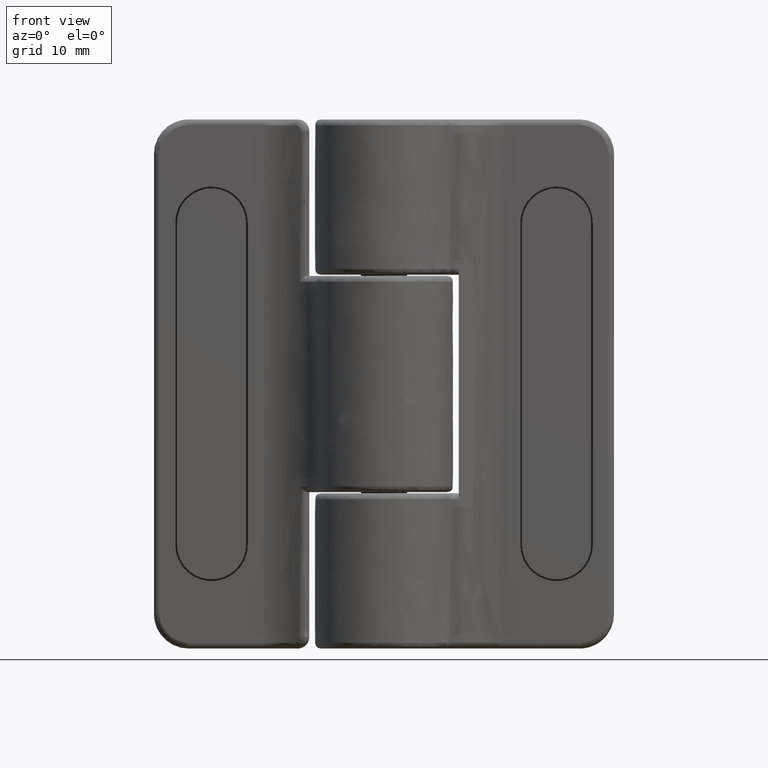
[diagram: clean part render]
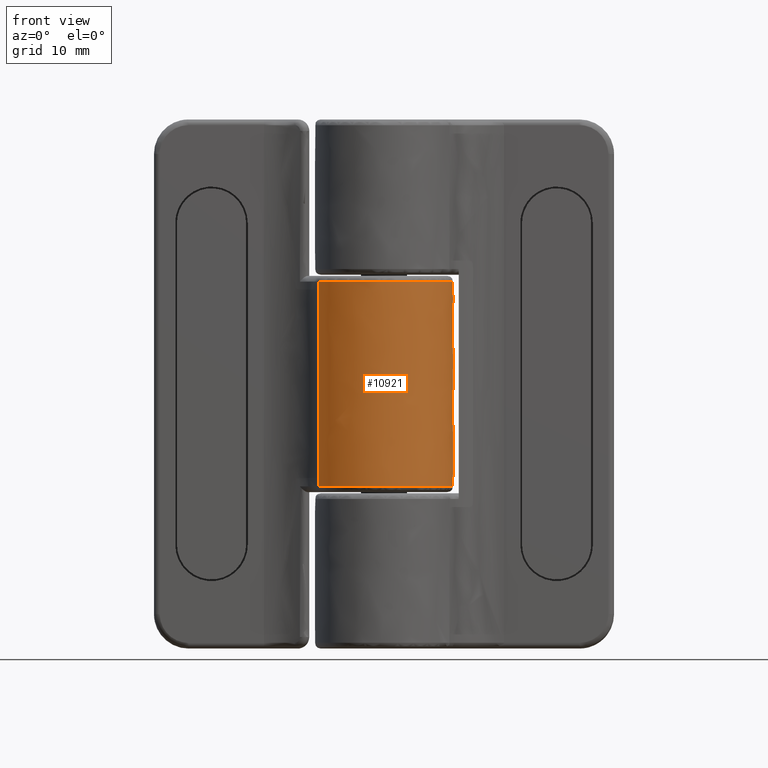
[diagram: same view with one face highlighted and labeled with its STEP entity id]
A machine part, front view. The second image highlights one B-rep face of the part: STEP entity #10921.
In plain terms, the highlighted face is a freeform B-spline surface patch.
Its self-contained STEP definition (entity closure, byte-faithful):
#9218=CARTESIAN_POINT('',(5.656854249543970,2.000000000015120,8.899999999998132));
#9219=VERTEX_POINT('',#9218);
#9245=CARTESIAN_POINT('',(5.656854249543970,2.000000000015120,5.899999999998240));
#9246=VERTEX_POINT('',#9245);
#9247=CARTESIAN_POINT('',(5.656854249543970,2.000000000015120,5.899999999998240));
#9248=CARTESIAN_POINT('',(5.656854249543970,2.000000000015120,8.899999999998132));
#9249=QUASI_UNIFORM_CURVE('',1,(#9247,#9248),.UNSPECIFIED.,.F.,.U.);
#9250=EDGE_CURVE('',#9246,#9219,#9249,.T.);
#9344=CARTESIAN_POINT('',(3.625989277842790,4.780397656825429,5.899999999998240));
#9345=VERTEX_POINT('',#9344);
#9346=CARTESIAN_POINT('',(3.625989277842791,4.780397656825430,5.899999999998240));
#9347=CARTESIAN_POINT('',(5.057814171218287,3.694341206347171,5.899999999998240));
#9348=CARTESIAN_POINT('',(5.656854249543976,2.000000000015124,5.899999999998240));
#9356=(BOUNDED_CURVE()B_SPLINE_CURVE(2,(#9346,#9347,#9348),.UNSPECIFIED.,.F.,.U.)CURVE()GEOMETRIC_REPRESENTATION_ITEM()QUASI_UNIFORM_CURVE()RATIONAL_B_SPLINE_CURVE((1.0,0.957952737238526,1.0))REPRESENTATION_ITEM(''));
#9357=EDGE_CURVE('',#9345,#9246,#9356,.T.);
#9468=CARTESIAN_POINT('',(5.656854249543980,2.000000000015120,-8.899999999998132));
#9469=VERTEX_POINT('',#9468);
#9493=CARTESIAN_POINT('',(5.656854249543980,2.000000000015120,-5.899999999998240));
#9494=VERTEX_POINT('',#9493);
#9500=CARTESIAN_POINT('',(5.656854249543980,2.000000000015120,-5.899999999998240));
#9501=CARTESIAN_POINT('',(5.656854249543980,2.000000000015120,-8.899999999998132));
#9502=QUASI_UNIFORM_CURVE('',1,(#9500,#9501),.UNSPECIFIED.,.F.,.U.);
#9503=EDGE_CURVE('',#9494,#9469,#9502,.T.);
#9613=CARTESIAN_POINT('',(3.625989277842915,4.780397656825429,-5.899999999998240));
#9614=VERTEX_POINT('',#9613);
#9620=CARTESIAN_POINT('',(5.656854249543978,2.000000000015119,-5.899999999998240));
#9621=CARTESIAN_POINT('',(5.057814171218309,3.694341206347119,-5.899999999998240));
#9622=CARTESIAN_POINT('',(3.625989277842870,4.780397656825371,-5.899999999998240));
#9630=(BOUNDED_CURVE()B_SPLINE_CURVE(2,(#9620,#9621,#9622),.UNSPECIFIED.,.F.,.U.)CURVE()GEOMETRIC_REPRESENTATION_ITEM()QUASI_UNIFORM_CURVE()RATIONAL_B_SPLINE_CURVE((1.0,0.957952737238528,1.0))REPRESENTATION_ITEM(''));
#9631=EDGE_CURVE('',#9494,#9614,#9630,.T.);
#10223=CARTESIAN_POINT('',(-5.688178258474220,-1.909090909090880,8.899999999998132));
#10224=VERTEX_POINT('',#10223);
#10315=CARTESIAN_POINT('',(5.656854249543970,2.000000000015120,8.899999999998132));
#10316=CARTESIAN_POINT('',(5.767884255218185,1.686026896867441,8.899999999998153));
#10317=CARTESIAN_POINT('',(5.943758403725805,1.015586745045011,8.899999999998091));
#10318=CARTESIAN_POINT('',(6.025747589696509,0.040710235922641,8.899999999998167));
#10319=CARTESIAN_POINT('',(5.943609197583295,-1.031968801167793,8.899999999998036));
#10320=CARTESIAN_POINT('',(5.671059315174497,-2.076348619824249,8.899999999998400));
#10321=CARTESIAN_POINT('',(5.194375134668756,-3.056355171765026,8.899999999997672));
#10322=CARTESIAN_POINT('',(4.665502022722499,-3.803322339277585,8.899999999998947));
#10323=CARTESIAN_POINT('',(4.064204680801404,-4.442529968206724,8.899999999997075));
#10324=CARTESIAN_POINT('',(3.298622855281185,-5.050401919360202,8.899999999998723));
#10325=CARTESIAN_POINT('',(2.435660916128985,-5.513091128621645,8.899999999998080));
#10326=CARTESIAN_POINT('',(1.417879043169218,-5.860280587349352,8.899999999998201));
#10327=CARTESIAN_POINT('',(0.450490707197735,-6.015556552425647,8.899999999998220));
#10328=CARTESIAN_POINT('',(-0.699550738834700,-5.992875309445842,8.899999999998194));
#10329=CARTESIAN_POINT('',(-1.781344417733100,-5.771782589661099,8.899999999997686));
#10330=CARTESIAN_POINT('',(-2.830077874554496,-5.325752346012271,8.899999999998313));
#10331=CARTESIAN_POINT('',(-3.669869632785209,-4.778131463767961,8.899999999998055));
#10332=CARTESIAN_POINT('',(-4.293705300850302,-4.214051414630369,8.899999999998242));
#10333=CARTESIAN_POINT('',(-4.816586563894359,-3.604818809355790,8.899999999997876));
#10334=CARTESIAN_POINT('',(-5.299913084585652,-2.871651488555339,8.899999999998808));
#10335=CARTESIAN_POINT('',(-5.570480464890743,-2.259903816021595,8.899999999997519));
#10336=CARTESIAN_POINT('',(-5.688178258474220,-1.909090909090880,8.899999999998132));
#10337=B_SPLINE_CURVE_WITH_KNOTS('',3,(#10315,#10316,#10317,#10318,#10319,#10320,#10321,#10322,#10323,#10324,#10325,#10326,#10327,#10328,#10329,#10330,#10331,#10332,#10333,#10334,#10335,#10336),.UNSPECIFIED.,.F.,.U.,(4,1,1,1,1,1,1,1,1,1,1,1,1,1,1,1,1,1,1,4),(0.000000078848924,0.999079385192765,2.072181600715506,2.923267258184875,4.218397444265360,5.291492712526996,6.179571744911385,6.956619061143561,7.918718305009053,9.102836811995795,9.879909048543585,11.138027078779849,12.026110984152600,13.321208198344660,14.431316224732400,15.430415182981051,16.318500604425260,16.947562446049989,17.835655964368939,18.945741310955292),.UNSPECIFIED.);
#10338=EDGE_CURVE('',#9219,#10224,#10337,.T.);
#10745=CARTESIAN_POINT('',(-5.688178258474220,-1.909090909090880,-8.899999999998132));
#10746=VERTEX_POINT('',#10745);
#10802=CARTESIAN_POINT('',(-5.688178258474220,-1.909090909090880,-8.899999999998132));
#10803=CARTESIAN_POINT('',(-5.543051205972342,-2.341778654062274,-8.899999999998117));
#10804=CARTESIAN_POINT('',(-5.221792995130435,-3.027557914133510,-8.899999999998189));
#10805=CARTESIAN_POINT('',(-4.649273270992716,-3.819353196943185,-8.899999999998052));
#10806=CARTESIAN_POINT('',(-4.124104374004469,-4.376876603144111,-8.899999999998183));
#10807=CARTESIAN_POINT('',(-3.584484608853623,-4.829639706823953,-8.899999999998126));
#10808=CARTESIAN_POINT('',(-2.849677323645860,-5.308858132417726,-8.899999999998077));
#10809=CARTESIAN_POINT('',(-1.955839228851008,-5.708629165240188,-8.899999999998316));
#10810=CARTESIAN_POINT('',(-0.848286517709524,-5.974468991869853,-8.899999999997720));
#10811=CARTESIAN_POINT('',(0.104868941170627,-6.022679690860161,-8.899999999998363));
#10812=CARTESIAN_POINT('',(1.014259372508749,-5.930891932574139,-8.899999999997625));
#10813=CARTESIAN_POINT('',(1.857431874006004,-5.733442998447511,-8.899999999999071));
#10814=CARTESIAN_POINT('',(2.852232248660976,-5.320475652068976,-8.899999999997853));
#10815=CARTESIAN_POINT('',(3.752020006398447,-4.724958556238453,-8.899999999997737));
#10816=CARTESIAN_POINT('',(4.411343056318814,-4.089834646997367,-8.899999999998940));
#10817=CARTESIAN_POINT('',(4.900990627245423,-3.485380037369866,-8.899999999996547));
#10818=CARTESIAN_POINT('',(5.297394003930902,-2.858233500272899,-8.899999999998723));
#10819=CARTESIAN_POINT('',(5.608263966977362,-2.171155508040514,-8.899999999998126));
#10820=CARTESIAN_POINT('',(5.832694994331082,-1.464985394438843,-8.899999999998071));
#10821=CARTESIAN_POINT('',(5.961473107385786,-0.797334711679127,-8.899999999998153));
#10822=CARTESIAN_POINT('',(6.019611668112560,0.028176707249158,-8.899999999998126));
#10823=CARTESIAN_POINT('',(5.956064780723583,0.954532317367170,-8.899999999998117));
#10824=CARTESIAN_POINT('',(5.780236599767583,1.651145519958593,-8.899999999998169));
#10825=CARTESIAN_POINT('',(5.656854249543980,2.000000000015120,-8.899999999998132));
#10826=B_SPLINE_CURVE_WITH_KNOTS('',3,(#10802,#10803,#10804,#10805,#10806,#10807,#10808,#10809,#10810,#10811,#10812,#10813,#10814,#10815,#10816,#10817,#10818,#10819,#10820,#10821,#10822,#10823,#10824,#10825),.UNSPECIFIED.,.F.,.U.,(4,1,1,1,1,1,1,1,1,1,1,1,1,1,1,1,1,1,1,1,1,4),(0.000000078853681,1.369110435083304,2.257206896686167,2.923267258189735,3.663340443567229,4.366411175368896,5.550528152969704,6.586603327288946,7.770707357846998,8.399771721485655,9.324857223108348,10.360957582449601,11.619072552545290,12.544173552708960,13.099203523690310,13.950266955140290,14.764355141096500,15.356407815863390,16.170487766802921,16.799550509661831,17.835655964369028,18.945741310955309),.UNSPECIFIED.);
#10827=EDGE_CURVE('',#10746,#9469,#10826,.T.);
#10879=CARTESIAN_POINT('',(-5.688178258474220,-1.909090909090880,8.899999999998132));
#10880=CARTESIAN_POINT('',(-5.688178258474220,-1.909090909090880,-8.899999999998132));
#10881=QUASI_UNIFORM_CURVE('',1,(#10879,#10880),.UNSPECIFIED.,.F.,.U.);
#10882=EDGE_CURVE('',#10224,#10746,#10881,.T.);
#10889=CARTESIAN_POINT('',(-5.758265813428163,-1.685934405974530,9.344999999998041));
#10890=CARTESIAN_POINT('',(-5.758265813428163,-1.685934405974530,-9.356124999998043));
#10891=CARTESIAN_POINT('',(-3.328001409941710,-9.986440275440259,9.344999999998040));
#10892=CARTESIAN_POINT('',(-3.328001409941710,-9.986440275440259,-9.356124999998043));
#10893=CARTESIAN_POINT('',(3.595755062166839,-4.803180772499722,9.344999999998041));
#10894=CARTESIAN_POINT('',(3.595755062166839,-4.803180772499722,-9.356124999998043));
#10895=CARTESIAN_POINT('',(10.519511534275384,0.380078730440818,9.344999999998040));
#10896=CARTESIAN_POINT('',(10.519511534275384,0.380078730440818,-9.356124999998043));
#10897=CARTESIAN_POINT('',(3.239745885638086,5.050153126080438,9.344999999998041));
#10898=CARTESIAN_POINT('',(3.239745885638086,5.050153126080438,-9.356124999998043));
#10906=(BOUNDED_SURFACE()B_SPLINE_SURFACE(1,2,((#10889,#10891,#10893,#10895,#10897),(#10890,#10892,#10894,#10896,#10898)),.UNSPECIFIED.,.F.,.F.,.U.)B_SPLINE_SURFACE_WITH_KNOTS((2,2),(3,2,3),(0.0,18.701124999996090),(0.0,12.560233868254450,25.120467736508889),.UNSPECIFIED.)GEOMETRIC_REPRESENTATION_ITEM()RATIONAL_B_SPLINE_SURFACE(((1.0,0.569996762596303,1.0,0.569996762596303,1.0),(1.0,0.569996762596303,1.0,0.569996762596303,1.0)))REPRESENTATION_ITEM('')SURFACE());
#10907=ORIENTED_EDGE('',*,*,#9250,.T.);
#10908=ORIENTED_EDGE('',*,*,#10338,.T.);
#10909=ORIENTED_EDGE('',*,*,#10882,.T.);
#10910=ORIENTED_EDGE('',*,*,#10827,.T.);
#10911=ORIENTED_EDGE('',*,*,#9503,.F.);
#10912=ORIENTED_EDGE('',*,*,#9631,.T.);
#10913=CARTESIAN_POINT('',(3.625989277842790,4.780397656825429,5.899999999998240));
#10914=CARTESIAN_POINT('',(3.625989277842915,4.780397656825429,-5.899999999998240));
#10915=QUASI_UNIFORM_CURVE('',1,(#10913,#10914),.UNSPECIFIED.,.F.,.U.);
#10916=EDGE_CURVE('',#9345,#9614,#10915,.T.);
#10917=ORIENTED_EDGE('',*,*,#10916,.F.);
#10918=ORIENTED_EDGE('',*,*,#9357,.T.);
#10919=EDGE_LOOP('',(#10907,#10908,#10909,#10910,#10911,#10912,#10917,#10918));
#10920=FACE_OUTER_BOUND('',#10919,.T.);
#10921=ADVANCED_FACE('',(#10920),#10906,.T.);